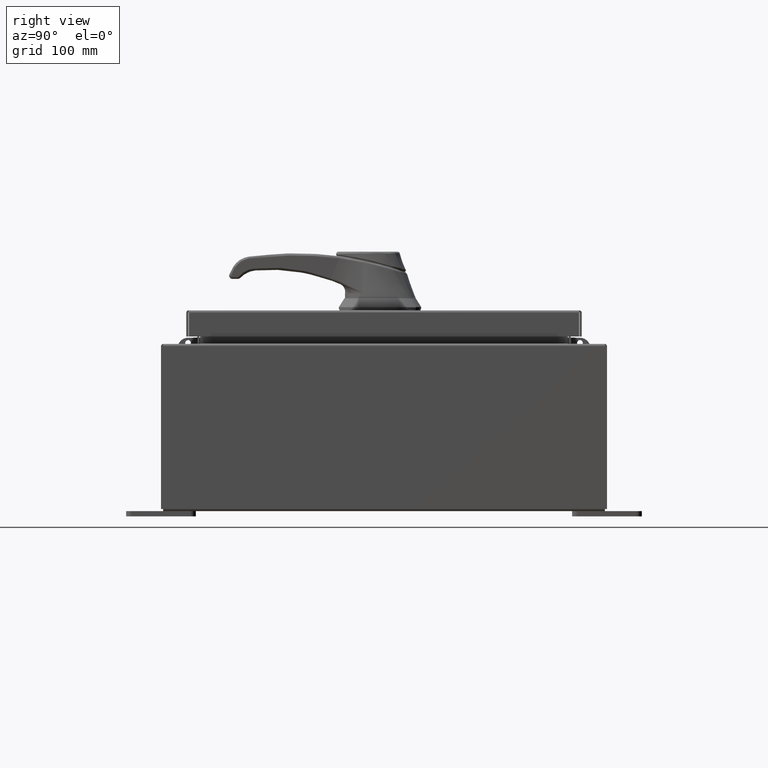
[diagram: clean part render]
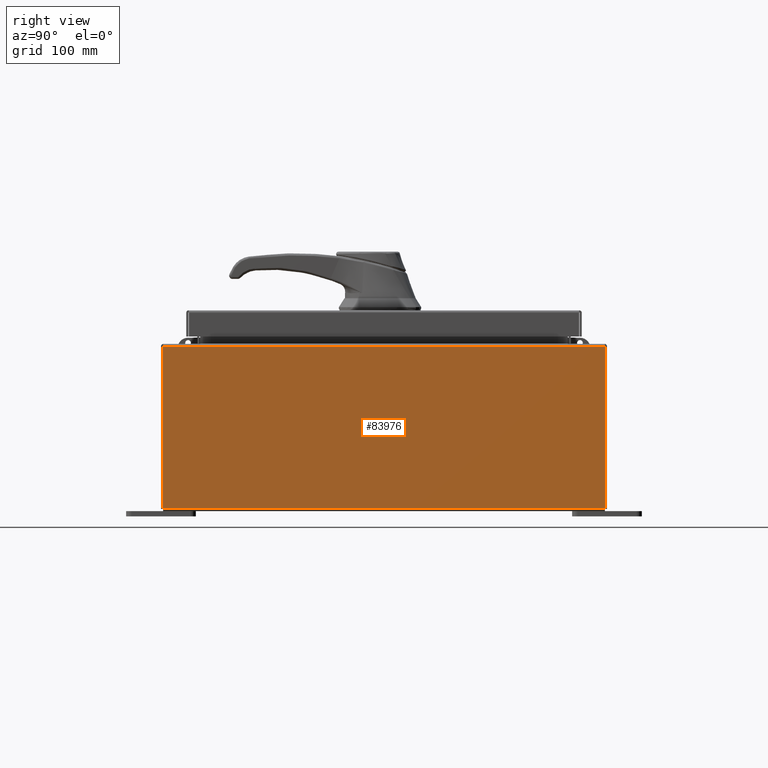
[diagram: same view with one face highlighted and labeled with its STEP entity id]
A machine part, right view. The second image highlights one B-rep face of the part: STEP entity #83976.
In plain terms, the highlighted planar face has unit normal (-1, 0, 0).
Its self-contained STEP definition (entity closure, byte-faithful):
#2553 = CARTESIAN_POINT ( 'NONE',  ( 7.999999999999999100, -7.925300000000000900, -2.683095728639522500E-014 ) ) ;
#4150 = VECTOR ( 'NONE', #17025, 39.37007874015748100 ) ;
#5136 = CARTESIAN_POINT ( 'NONE',  ( 8.000000000000019500, -7.925300000000000000, 5.837600000000001000 ) ) ;
#6757 = LINE ( 'NONE', #66401, #4150 ) ;
#9515 = CARTESIAN_POINT ( 'NONE',  ( 8.000000000000019500, 7.925300000000000000, 5.837600000000001000 ) ) ;
#10125 = CARTESIAN_POINT ( 'NONE',  ( 7.999999999999999100, -7.925300000000000000, 0.01299999999999984500 ) ) ;
#10208 = LINE ( 'NONE', #28859, #34754 ) ;
#11446 = EDGE_CURVE ( 'NONE', #85296, #85737, #80976, .T. ) ;
#15704 = CARTESIAN_POINT ( 'NONE',  ( 7.999999999999999100, 7.925299999999998200, -2.829253492156558900E-014 ) ) ;
#17025 = DIRECTION ( 'NONE',  ( -0.0000000000000000000, -1.000000000000000000, -0.0000000000000000000 ) ) ;
#17602 = EDGE_CURVE ( 'NONE', #62117, #85737, #6757, .T. ) ;
#24040 = DIRECTION ( 'NONE',  ( 3.503965158194251300E-015, 0.0000000000000000000, 1.000000000000000000 ) ) ;
#25363 = LINE ( 'NONE', #15704, #44667 ) ;
#27178 = ORIENTED_EDGE ( 'NONE', *, *, #11446, .T. ) ;
#28859 = CARTESIAN_POINT ( 'NONE',  ( 8.000000000000019500, 7.925300000000000000, 5.837600000000001000 ) ) ;
#34754 = VECTOR ( 'NONE', #53678, 39.37007874015748100 ) ;
#40010 = PLANE ( 'NONE',  #90740 ) ;
#44667 = VECTOR ( 'NONE', #24040, 39.37007874015748100 ) ;
#45430 = EDGE_CURVE ( 'NONE', #56692, #85296, #10208, .T. ) ;
#48327 = DIRECTION ( 'NONE',  ( -1.000000000000000000, 0.0000000000000000000, 3.503965158194250900E-015 ) ) ;
#52154 = DIRECTION ( 'NONE',  ( -3.503965158194251300E-015, -1.844192188523290500E-016, -1.000000000000000000 ) ) ;
#53678 = DIRECTION ( 'NONE',  ( -0.0000000000000000000, -1.000000000000000000, -0.0000000000000000000 ) ) ;
#53825 = FACE_OUTER_BOUND ( 'NONE', #89628, .T. ) ;
#55834 = CARTESIAN_POINT ( 'NONE',  ( 7.999999999999999100, 0.0000000000000000000, -2.829253492156558900E-014 ) ) ;
#56692 = VERTEX_POINT ( 'NONE', #9515 ) ;
#57702 = EDGE_CURVE ( 'NONE', #62117, #56692, #25363, .T. ) ;
#62117 = VERTEX_POINT ( 'NONE', #82551 ) ;
#65629 = ORIENTED_EDGE ( 'NONE', *, *, #17602, .F. ) ;
#66401 = CARTESIAN_POINT ( 'NONE',  ( 7.999999999999999100, -7.925300000000000000, 0.01299999999999984700 ) ) ;
#80976 = LINE ( 'NONE', #2553, #100565 ) ;
#82551 = CARTESIAN_POINT ( 'NONE',  ( 7.999999999999999100, 7.925300000000000000, 0.01299999999999984700 ) ) ;
#83276 = ORIENTED_EDGE ( 'NONE', *, *, #45430, .T. ) ;
#83976 = ADVANCED_FACE ( 'NONE', ( #53825 ), #40010, .F. ) ;
#85296 = VERTEX_POINT ( 'NONE', #5136 ) ;
#85737 = VERTEX_POINT ( 'NONE', #10125 ) ;
#89628 = EDGE_LOOP ( 'NONE', ( #83276, #27178, #65629, #96411 ) ) ;
#90740 = AXIS2_PLACEMENT_3D ( 'NONE', #55834, #48327, #106333 ) ;
#96411 = ORIENTED_EDGE ( 'NONE', *, *, #57702, .T. ) ;
#100565 = VECTOR ( 'NONE', #52154, 39.37007874015748100 ) ;
#106333 = DIRECTION ( 'NONE',  ( 3.503965158194250900E-015, 0.0000000000000000000, 1.000000000000000000 ) ) ;